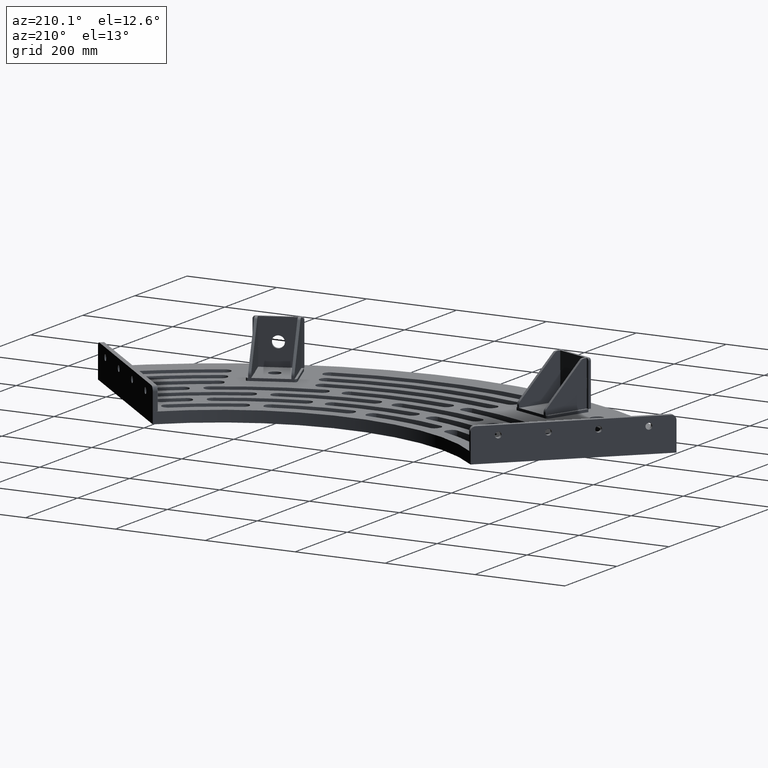
[diagram: clean part render]
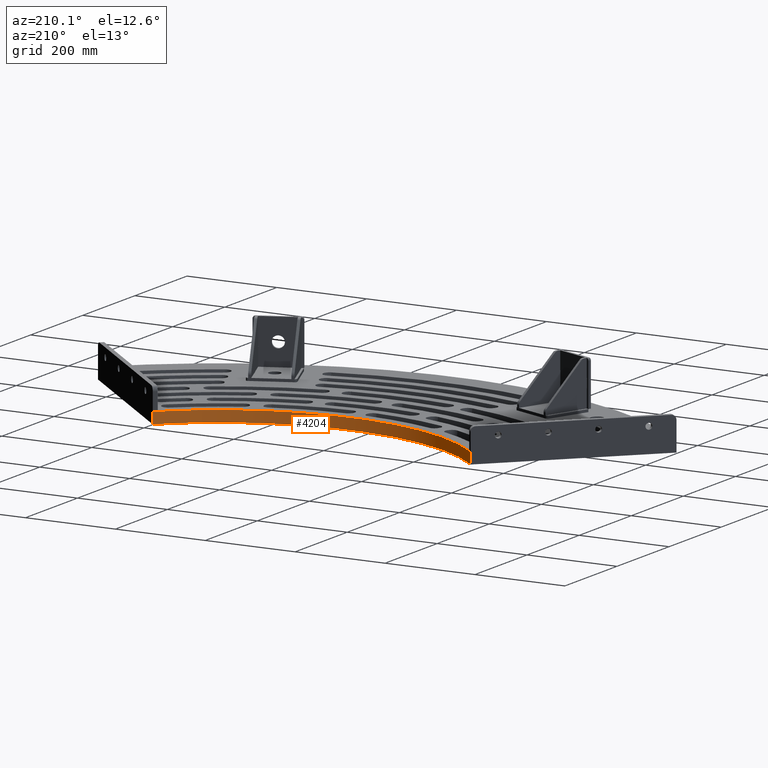
[diagram: same view with one face highlighted and labeled with its STEP entity id]
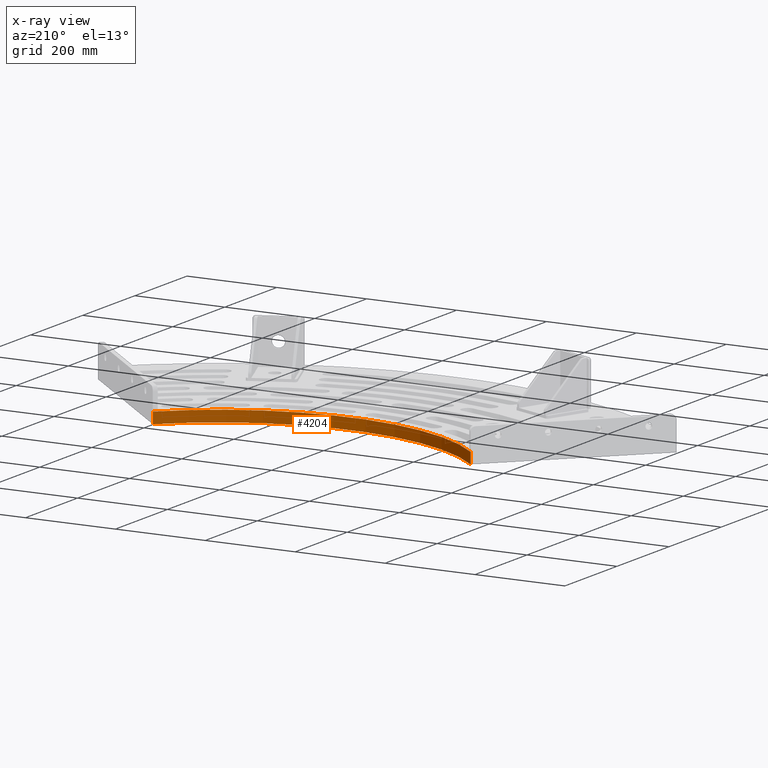
[diagram: x-ray of the same camera — body ghosted, the highlighted face saturated]
A machine part, auxiliary view. The second image highlights one B-rep face of the part: STEP entity #4204.
The next image is the same camera in x-ray: the body ghosted, the highlighted face saturated — about 0% of this face is hidden behind the body in this view.
In plain terms, the highlighted cylindrical surface (partial cylindrical patch) has radius 500 mm, axis along (-0, -0, -1).
Its self-contained STEP definition (entity closure, byte-faithful):
#146 = DIRECTION ( 'NONE',  ( 2.185460951963199771E-18, 1.951563910473907981E-16, -1.000000000000000000 ) ) ;
#746 = CARTESIAN_POINT ( 'NONE',  ( 353.5533905932746848, -353.5533905932732068, -24.99999999999992895 ) ) ;
#784 = CIRCLE ( 'NONE', #2579, 500.0000000000000000 ) ;
#1026 = VERTEX_POINT ( 'NONE', #6777 ) ;
#1464 = VERTEX_POINT ( 'NONE', #3607 ) ;
#1802 = ORIENTED_EDGE ( 'NONE', *, *, #3472, .F. ) ;
#2128 = DIRECTION ( 'NONE',  ( -2.185460951963199771E-18, -1.951563910473907981E-16, 1.000000000000000000 ) ) ;
#2579 = AXIS2_PLACEMENT_3D ( 'NONE', #9653, #146, #3935 ) ;
#2847 = ORIENTED_EDGE ( 'NONE', *, *, #11148, .T. ) ;
#3014 = EDGE_LOOP ( 'NONE', ( #1802, #4138, #2847, #3414 ) ) ;
#3195 = VECTOR ( 'NONE', #6495, 1000.000000000000000 ) ;
#3338 = CARTESIAN_POINT ( 'NONE',  ( 353.5533905932746848, -353.5533905932732068, -24.99999999999992895 ) ) ;
#3414 = ORIENTED_EDGE ( 'NONE', *, *, #5281, .T. ) ;
#3472 = EDGE_CURVE ( 'NONE', #4045, #1464, #11130, .T. ) ;
#3607 = CARTESIAN_POINT ( 'NONE',  ( -353.5533905932740595, -353.5533905932730931, 6.245004513516505540E-14 ) ) ;
#3649 = LINE ( 'NONE', #9425, #3195 ) ;
#3935 = DIRECTION ( 'NONE',  ( 1.000000000000000000, -6.192194466414940491E-16, 0.000000000000000000 ) ) ;
#4045 = VERTEX_POINT ( 'NONE', #6717 ) ;
#4138 = ORIENTED_EDGE ( 'NONE', *, *, #10545, .F. ) ;
#4204 = ADVANCED_FACE ( 'NONE', ( #6030 ), #5855, .F. ) ;
#4407 = LINE ( 'NONE', #3338, #11689 ) ;
#4797 = AXIS2_PLACEMENT_3D ( 'NONE', #6902, #2128, #11565 ) ;
#5281 = EDGE_CURVE ( 'NONE', #1026, #1464, #3649, .T. ) ;
#5544 = VERTEX_POINT ( 'NONE', #746 ) ;
#5855 = CYLINDRICAL_SURFACE ( 'NONE', #4797, 500.0000000000000000 ) ;
#6030 = FACE_OUTER_BOUND ( 'NONE', #3014, .T. ) ;
#6495 = DIRECTION ( 'NONE',  ( -2.185460951963199771E-18, -1.951563910473907981E-16, 1.000000000000000000 ) ) ;
#6564 = AXIS2_PLACEMENT_3D ( 'NONE', #9307, #7380, #12244 ) ;
#6717 = CARTESIAN_POINT ( 'NONE',  ( 353.5533905932746848, -353.5533905932732068, 7.285838599102589797E-14 ) ) ;
#6777 = CARTESIAN_POINT ( 'NONE',  ( -353.5533905932740595, -353.5533905932730931, -24.99999999999993960 ) ) ;
#6902 = CARTESIAN_POINT ( 'NONE',  ( 5.463652379908002509E-17, 4.878909776184770742E-15, -25.00000000000000000 ) ) ;
#7309 = DIRECTION ( 'NONE',  ( -2.185460951963199771E-18, -1.951563910473907981E-16, 1.000000000000000000 ) ) ;
#7380 = DIRECTION ( 'NONE',  ( 2.185460951963199771E-18, 1.951563910473907981E-16, -1.000000000000000000 ) ) ;
#9307 = CARTESIAN_POINT ( 'NONE',  ( 0.000000000000000000, 0.000000000000000000, 0.000000000000000000 ) ) ;
#9425 = CARTESIAN_POINT ( 'NONE',  ( -353.5533905932740595, -353.5533905932730931, -24.99999999999993960 ) ) ;
#9653 = CARTESIAN_POINT ( 'NONE',  ( 5.463652379908002509E-17, 4.878909776184770742E-15, -25.00000000000000000 ) ) ;
#10545 = EDGE_CURVE ( 'NONE', #5544, #4045, #4407, .T. ) ;
#11130 = CIRCLE ( 'NONE', #6564, 500.0000000000000000 ) ;
#11148 = EDGE_CURVE ( 'NONE', #5544, #1026, #784, .T. ) ;
#11565 = DIRECTION ( 'NONE',  ( 1.000000000000000000, -6.192194466414940491E-16, 0.000000000000000000 ) ) ;
#11689 = VECTOR ( 'NONE', #7309, 1000.000000000000000 ) ;
#12244 = DIRECTION ( 'NONE',  ( 1.000000000000000000, -6.192194466414940491E-16, -2.185460951963199771E-18 ) ) ;